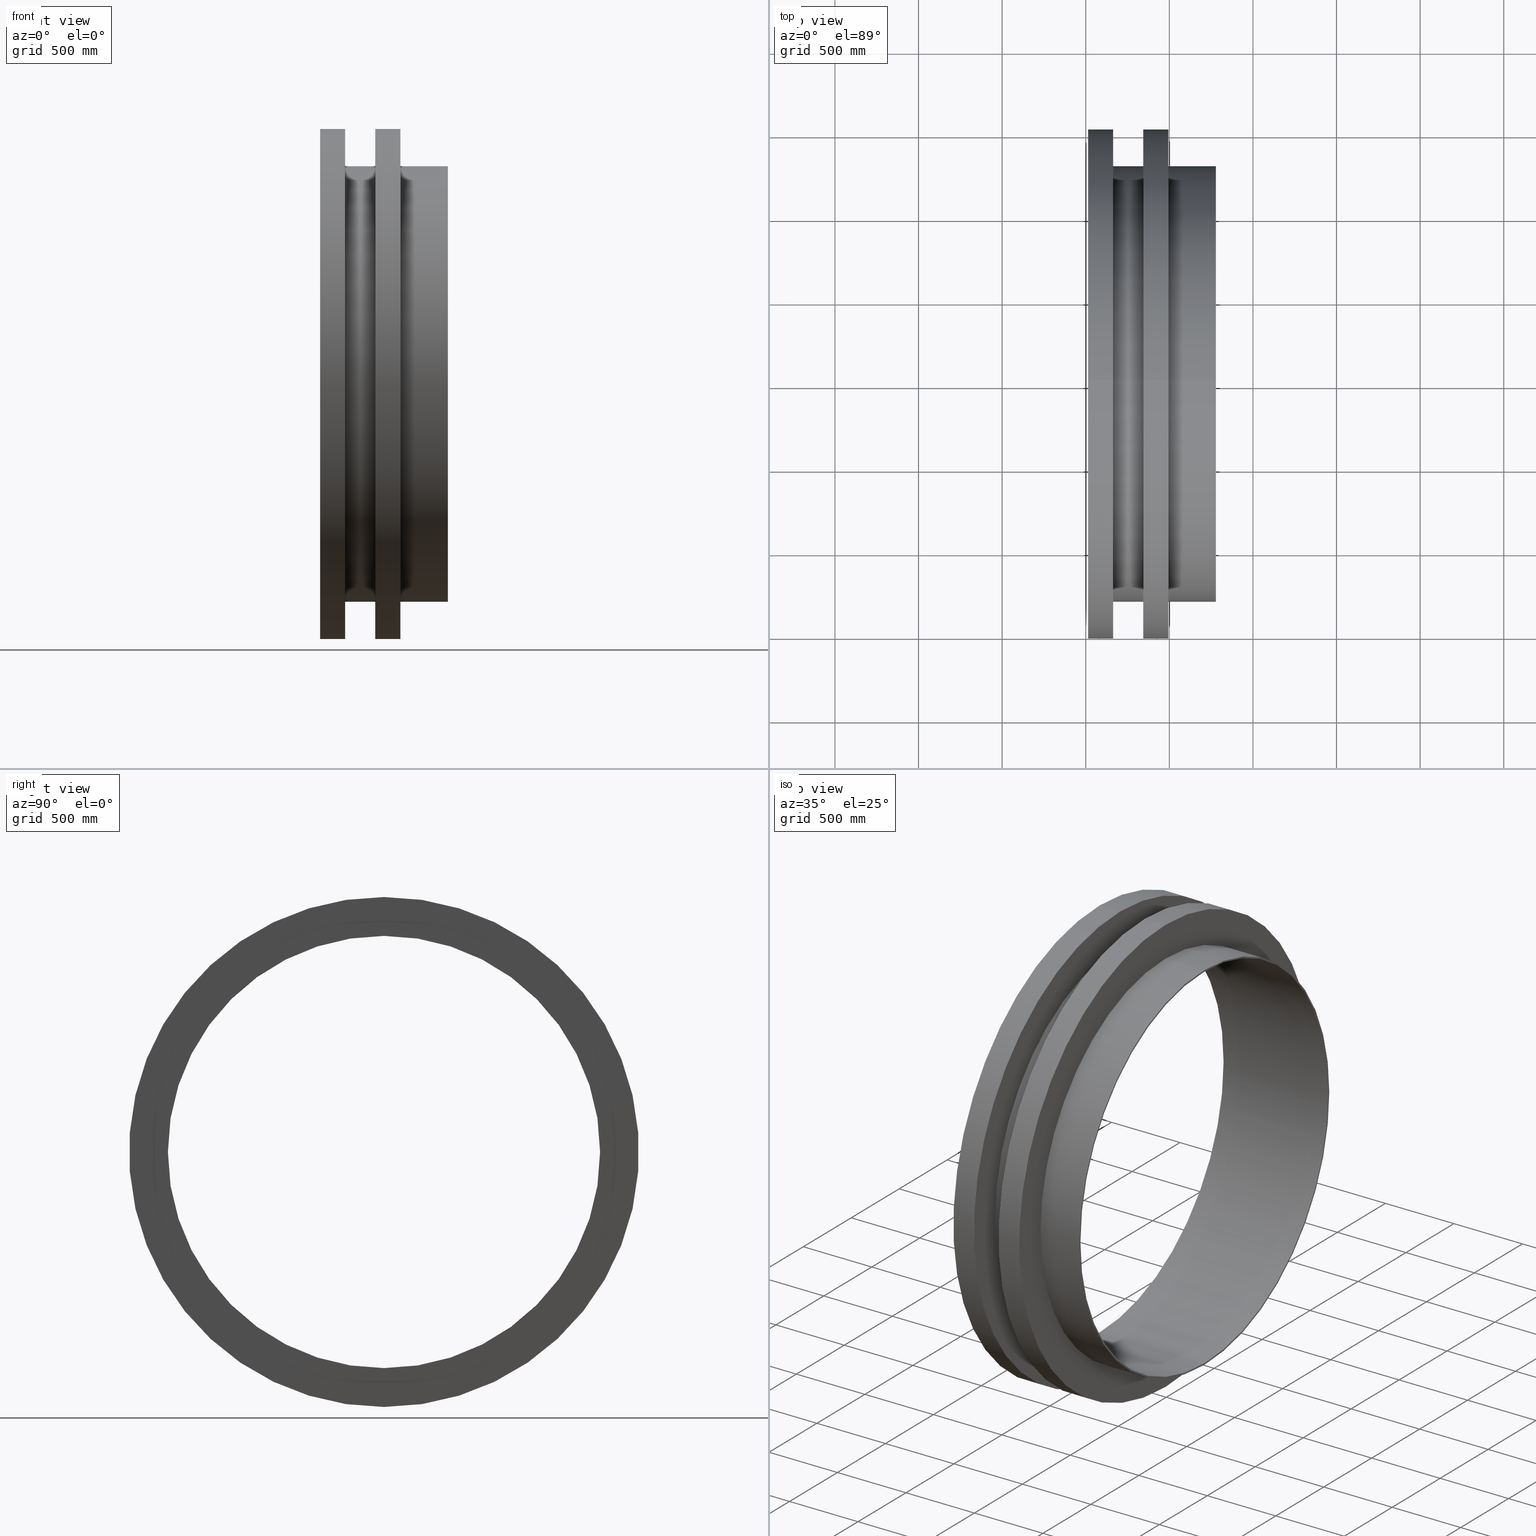
[diagram: canonical four-view strip — front | top / right | iso, engineering-drawing reading convention]
A machine part, canonical four-view strip (front | top / right | iso — engineering-drawing reading convention). The complete STEP part file that produces these views, byte-faithful:
ISO-10303-21;
HEADER;
FILE_DESCRIPTION (( 'STEP AP203' ),
    '1' );
FILE_NAME ('3974-13-42_REV_.step',
    '2026-02-11T00:55:56',
    ( '' ),
    ( '' ),
    'SwSTEP 2.0',
    'SolidWorks 2025',
    '' );
FILE_SCHEMA (( 'CONFIG_CONTROL_DESIGN' ));
ENDSEC;

DATA;
#1 = ORGANIZATION ( 'NAUO-ORG1', 'UNSPECIFIED', 'UNSPECIFIED' ) ;
#2 = EDGE_CURVE ( 'NONE', #335, #303, #547, .T. ) ;
#3 = DATE_TIME_ROLE ( 'creation_date' ) ;
#4 = DIRECTION ( 'NONE',  ( 1.000000000000000000, 2.366582715663035416E-30, 0.000000000000000000 ) ) ;
#5 = AXIS2_PLACEMENT_3D ( 'NONE', #648, #521, #463 ) ;
#6 = DIRECTION ( 'NONE',  ( 0.000000000000000000, 0.000000000000000000, -1.000000000000000000 ) ) ;
#7 = EDGE_CURVE ( 'NONE', #45, #505, #416, .T. ) ;
#8 = EDGE_LOOP ( 'NONE', ( #618, #322, #444, #651 ) ) ;
#9 = APPROVAL_DATE_TIME ( #477, #261 ) ;
#10 = DIRECTION ( 'NONE',  ( 1.000000000000000000, 0.000000000000000000, 0.000000000000000000 ) ) ;
#11 = ORIENTED_EDGE ( 'NONE', *, *, #674, .F. ) ;
#12 = EDGE_CURVE ( 'NONE', #494, #549, #637, .T. ) ;
#13 = CIRCLE ( 'NONE', #572, 1525.000000000000000 ) ;
#14 = PERSON_AND_ORGANIZATION_ROLE ( 'design_owner' ) ;
#15 = AXIS2_PLACEMENT_3D ( 'NONE', #205, #574, #259 ) ;
#16 = LOCAL_TIME ( 11, 55, 56.00000000000000000, #170 ) ;
#17 = LINE ( 'NONE', #548, #266 ) ;
#18 = EDGE_LOOP ( 'NONE', ( #427, #476 ) ) ;
#19 = PRODUCT_DEFINITION ( 'UNKNOWN', '', #605, #395 ) ;
#20 = CARTESIAN_POINT ( 'NONE',  ( -1060.000000000000000, 114.4108509701294309, -1596.231616082000301 ) ) ;
#21 = ORIENTED_EDGE ( 'NONE', *, *, #550, .T. ) ;
#22 = APPROVAL_DATE_TIME ( #551, #312 ) ;
#23 = DIRECTION ( 'NONE',  ( 0.000000000000000000, 0.000000000000000000, -1.000000000000000000 ) ) ;
#24 = ORIENTED_EDGE ( 'NONE', *, *, #299, .F. ) ;
#25 = COORDINATED_UNIVERSAL_TIME_OFFSET ( 10, 0, .AHEAD. ) ;
#26 = ADVANCED_FACE ( 'NONE', ( #695 ), #198, .T. ) ;
#27 = CARTESIAN_POINT ( 'NONE',  ( -625.3061357870070651, 114.4108509701294594, -71.23161608200013006 ) ) ;
#28 = CC_DESIGN_APPROVAL ( #312, ( #19 ) ) ;
#29 = EDGE_LOOP ( 'NONE', ( #571, #686 ) ) ;
#30 = PERSON_AND_ORGANIZATION ( #565, #383 ) ;
#31 = CYLINDRICAL_SURFACE ( 'NONE', #122, 1525.000000000000000 ) ;
#32 = ORIENTED_EDGE ( 'NONE', *, *, #201, .T. ) ;
#33 = MANIFOLD_SOLID_BREP ( 'CirPattern1', #692 ) ;
#34 = CALENDAR_DATE ( 2026, 11, 2 ) ;
#35 = DIRECTION ( 'NONE',  ( 0.000000000000000000, 0.000000000000000000, -1.000000000000000000 ) ) ;
#36 = ORIENTED_EDGE ( 'NONE', *, *, #361, .F. ) ;
#37 = APPROVAL_DATE_TIME ( #681, #583 ) ;
#38 = CARTESIAN_POINT ( 'NONE',  ( -1350.000000000000909, 114.4108509701294594, -71.23161608200079797 ) ) ;
#39 = AXIS2_PLACEMENT_3D ( 'NONE', #391, #617, #193 ) ;
#40 = ORIENTED_EDGE ( 'NONE', *, *, #12, .F. ) ;
#41 = CC_DESIGN_APPROVAL ( #285, ( #644 ) ) ;
#42 = CC_DESIGN_PERSON_AND_ORGANIZATION_ASSIGNMENT ( #291, #665, ( #644 ) ) ;
#43 = DIRECTION ( 'NONE',  ( 0.000000000000000000, 0.000000000000000000, -1.000000000000000000 ) ) ;
#44 = AXIS2_PLACEMENT_3D ( 'NONE', #265, #4, #527 ) ;
#45 = VERTEX_POINT ( 'NONE', #258 ) ;
#46 = FACE_OUTER_BOUND ( 'NONE', #497, .T. ) ;
#47 = FACE_BOUND ( 'NONE', #224, .T. ) ;
#48 = CARTESIAN_POINT ( 'NONE',  ( -1389.999999999999773, 114.4108509701295873, 1221.268383917999699 ) ) ;
#49 = EDGE_CURVE ( 'NONE', #489, #332, #250, .T. ) ;
#50 = PLANE ( 'NONE',  #501 ) ;
#51 = CIRCLE ( 'NONE', #352, 1292.500000000000000 ) ;
#52 = LOCAL_TIME ( 11, 55, 56.00000000000000000, #546 ) ;
#53 = CARTESIAN_POINT ( 'NONE',  ( -1239.999999999999773, 114.4108509701294309, -71.23161608200025796 ) ) ;
#54 = CLOSED_SHELL ( 'NONE', ( #317, #105, #407, #153, #96, #599 ) ) ;
#55 = DIRECTION ( 'NONE',  ( 1.000000000000000000, 0.000000000000000000, 0.000000000000000000 ) ) ;
#56 = FACE_BOUND ( 'NONE', #556, .T. ) ;
#57 = AXIS2_PLACEMENT_3D ( 'NONE', #400, #343, #561 ) ;
#58 = APPROVAL_STATUS ( 'not_yet_approved' ) ;
#59 = DIRECTION ( 'NONE',  ( 0.000000000000000000, 0.000000000000000000, -1.000000000000000000 ) ) ;
#60 = PERSON_AND_ORGANIZATION ( #565, #383 ) ;
#61 = CARTESIAN_POINT ( 'NONE',  ( -625.3061357870070651, 114.4108509701294594, -1363.731616082000073 ) ) ;
#62 = EDGE_LOOP ( 'NONE', ( #293, #660, #502, #613 ) ) ;
#63 = PERSON_AND_ORGANIZATION ( #565, #383 ) ;
#64 = CARTESIAN_POINT ( 'NONE',  ( -1350.000000000000909, 114.4108509701294594, -1363.731616082000755 ) ) ;
#65 = ADVANCED_FACE ( 'NONE', ( #310 ), #95, .F. ) ;
#66 = ORIENTED_EDGE ( 'NONE', *, *, #12, .T. ) ;
#67 = CC_DESIGN_DATE_AND_TIME_ASSIGNMENT ( #387, #237, ( #19 ) ) ;
#68 = AXIS2_PLACEMENT_3D ( 'NONE', #488, #214, #650 ) ;
#69 = CYLINDRICAL_SURFACE ( 'NONE', #667, 1302.500000000000000 ) ;
#70 = ORIENTED_EDGE ( 'NONE', *, *, #49, .T. ) ;
#71 = DIRECTION ( 'NONE',  ( 0.000000000000000000, 0.000000000000000000, -1.000000000000000000 ) ) ;
#72 = EDGE_LOOP ( 'NONE', ( #392, #80, #339, #593 ) ) ;
#73 = EDGE_CURVE ( 'NONE', #398, #121, #408, .T. ) ;
#74 = COORDINATED_UNIVERSAL_TIME_OFFSET ( 10, 0, .AHEAD. ) ;
#75 = DIRECTION ( 'NONE',  ( 0.000000000000000000, 0.000000000000000000, -1.000000000000000000 ) ) ;
#76 = EDGE_LOOP ( 'NONE', ( #631, #142, #21, #232 ) ) ;
#77 = PERSON_AND_ORGANIZATION_ROLE ( 'creator' ) ;
#78 = CARTESIAN_POINT ( 'NONE',  ( -1060.000000000000000, 114.4108509701294309, -71.23161608200025796 ) ) ;
#79 = AXIS2_PLACEMENT_3D ( 'NONE', #218, #438, #592 ) ;
#80 = ORIENTED_EDGE ( 'NONE', *, *, #73, .F. ) ;
#81 = CONTEXT_DEPENDENT_SHAPE_REPRESENTATION ( #157, #658 ) ;
#82 = CIRCLE ( 'NONE', #464, 1525.000000000000000 ) ;
#83 = FACE_OUTER_BOUND ( 'NONE', #350, .T. ) ;
#84 = ADVANCED_FACE ( 'NONE', ( #515, #47 ), #696, .T. ) ;
#85 = VERTEX_POINT ( 'NONE', #159 ) ;
#86 = COORDINATED_UNIVERSAL_TIME_OFFSET ( 10, 0, .AHEAD. ) ;
#87 = DIRECTION ( 'NONE',  ( 1.000000000000000000, 2.366582715663035416E-30, 0.000000000000000000 ) ) ;
#88 = ORIENTED_EDGE ( 'NONE', *, *, #386, .T. ) ;
#89 = CC_DESIGN_DATE_AND_TIME_ASSIGNMENT ( #336, #492, ( #689 ) ) ;
#90 = FACE_OUTER_BOUND ( 'NONE', #435, .T. ) ;
#91 = CIRCLE ( 'NONE', #188, 1525.000000000000000 ) ;
#92 = ORIENTED_EDGE ( 'NONE', *, *, #560, .T. ) ;
#93 = PRODUCT_DEFINITION_FORMATION_WITH_SPECIFIED_SOURCE ( 'ANY', '', #277, .NOT_KNOWN. ) ;
#94 = DIRECTION ( 'NONE',  ( 1.000000000000000000, 0.000000000000000000, 0.000000000000000000 ) ) ;
#95 = CYLINDRICAL_SURFACE ( 'NONE', #44, 1292.500000000000000 ) ;
#96 = ADVANCED_FACE ( 'NONE', ( #410, #466 ), #104, .T. ) ;
#97 = DIRECTION ( 'NONE',  ( 0.000000000000000000, 0.000000000000000000, -1.000000000000000000 ) ) ;
#98 = LINE ( 'NONE', #162, #212 ) ;
#99 = DIRECTION ( 'NONE',  ( 1.000000000000000000, 2.366582715663035416E-30, 7.000892187593784421E-61 ) ) ;
#100 = AXIS2_PLACEMENT_3D ( 'NONE', #27, #334, #43 ) ;
#101 = APPROVAL_PERSON_ORGANIZATION ( #227, #179, #602 ) ;
#102 = LOCAL_TIME ( 11, 55, 56.00000000000000000, #210 ) ;
#103 =( LENGTH_UNIT ( ) NAMED_UNIT ( * ) SI_UNIT ( .MILLI., .METRE. ) );
#104 = PLANE ( 'NONE',  #563 ) ;
#105 = ADVANCED_FACE ( 'NONE', ( #578 ), #459, .T. ) ;
#106 = DIRECTION ( 'NONE',  ( 0.000000000000000000, 0.000000000000000000, -1.000000000000000000 ) ) ;
#107 = DIRECTION ( 'NONE',  ( 0.000000000000000000, 0.000000000000000000, -1.000000000000000000 ) ) ;
#108 = EDGE_CURVE ( 'NONE', #398, #147, #98, .T. ) ;
#109 = PERSON_AND_ORGANIZATION_ROLE ( 'creator' ) ;
#110 = LINE ( 'NONE', #171, #604 ) ;
#111 = AXIS2_PLACEMENT_3D ( 'NONE', #118, #10, #59 ) ;
#112 = AXIS2_PLACEMENT_3D ( 'NONE', #630, #353, #254 ) ;
#113 = COORDINATED_UNIVERSAL_TIME_OFFSET ( 10, 0, .AHEAD. ) ;
#114 = CARTESIAN_POINT ( 'NONE',  ( -1060.000000000000000, 114.4108509701294309, -71.23161608200025796 ) ) ;
#115 = ORIENTED_EDGE ( 'NONE', *, *, #560, .F. ) ;
#116 = ADVANCED_FACE ( 'NONE', ( #585, #306 ), #50, .T. ) ;
#117 = MECHANICAL_CONTEXT ( 'NONE', #629, 'mechanical' ) ;
#118 = CARTESIAN_POINT ( 'NONE',  ( -1389.999999999999773, 114.4108509701294309, -71.23161608200025796 ) ) ;
#119 = EDGE_LOOP ( 'NONE', ( #249, #196 ) ) ;
#120 = DIRECTION ( 'NONE',  ( 1.000000000000000000, 0.000000000000000000, 0.000000000000000000 ) ) ;
#121 = VERTEX_POINT ( 'NONE', #412 ) ;
#122 = AXIS2_PLACEMENT_3D ( 'NONE', #612, #129, #247 ) ;
#123 = PERSON_AND_ORGANIZATION ( #565, #383 ) ;
#124 = AXIS2_PLACEMENT_3D ( 'NONE', #649, #418, #487 ) ;
#125 = LINE ( 'NONE', #20, #257 ) ;
#126 = ORIENTED_EDGE ( 'NONE', *, *, #437, .T. ) ;
#127 = AXIS2_PLACEMENT_3D ( 'NONE', #636, #473, #211 ) ;
#128 = PERSON_AND_ORGANIZATION_ROLE ( 'creator' ) ;
#129 = DIRECTION ( 'NONE',  ( 1.000000000000000000, 0.000000000000000000, 0.000000000000000000 ) ) ;
#130 = VERTEX_POINT ( 'NONE', #691 ) ;
#131 = PERSON_AND_ORGANIZATION ( #565, #383 ) ;
#132 = CARTESIAN_POINT ( 'NONE',  ( -1389.999999999999773, 114.4108509701294309, -1596.231616082000301 ) ) ;
#133 = VERTEX_POINT ( 'NONE', #200 ) ;
#134 = APPROVAL_ROLE ( '' ) ;
#135 = ADVANCED_FACE ( 'NONE', ( #639 ), #151, .T. ) ;
#136 = CARTESIAN_POINT ( 'NONE',  ( -1239.999999999999773, 114.4108509701294309, -71.23161608200025796 ) ) ;
#137 = AXIS2_PLACEMENT_3D ( 'NONE', #262, #199, #106 ) ;
#138 = CARTESIAN_POINT ( 'NONE',  ( -1060.000000000000000, 114.4108509701296157, 1453.768383917999472 ) ) ;
#139 = ORIENTED_EDGE ( 'NONE', *, *, #682, .T. ) ;
#140 = PLANE ( 'NONE',  #57 ) ;
#141 = EDGE_CURVE ( 'NONE', #332, #489, #82, .T. ) ;
#142 = ORIENTED_EDGE ( 'NONE', *, *, #7, .T. ) ;
#143 = CALENDAR_DATE ( 2026, 11, 2 ) ;
#144 = DIRECTION ( 'NONE',  ( 1.000000000000000000, 0.000000000000000000, 0.000000000000000000 ) ) ;
#145 = VERTEX_POINT ( 'NONE', #646 ) ;
#146 = AXIS2_PLACEMENT_3D ( 'NONE', #596, #278, #434 ) ;
#147 = VERTEX_POINT ( 'NONE', #366 ) ;
#148 = CC_DESIGN_APPROVAL ( #534, ( #93 ) ) ;
#149 = CARTESIAN_POINT ( 'NONE',  ( -1389.999999999999773, 114.4108509701294309, -71.23161608200025796 ) ) ;
#150 = CARTESIAN_POINT ( 'NONE',  ( -1060.000000000000000, 114.4108509701294309, -71.23161608200025796 ) ) ;
#151 = CYLINDRICAL_SURFACE ( 'NONE', #594, 1525.000000000000000 ) ;
#152 = ADVANCED_BREP_SHAPE_REPRESENTATION ( '', ( #33, #271, #498, #112 ), #558 ) ;
#153 = ADVANCED_FACE ( 'NONE', ( #56, #422 ), #376, .F. ) ;
#154 = DIRECTION ( 'NONE',  ( 1.000000000000000000, 0.000000000000000000, 0.000000000000000000 ) ) ;
#155 = CARTESIAN_POINT ( 'NONE',  ( -1060.000000000000000, 114.4108509701294309, -71.23161608200025796 ) ) ;
#156 = AXIS2_PLACEMENT_3D ( 'NONE', #158, #203, #195 ) ;
#157 =( REPRESENTATION_RELATIONSHIP ('NONE','NONE', #591, #367 ) REPRESENTATION_RELATIONSHIP_WITH_TRANSFORMATION ( #608 )SHAPE_REPRESENTATION_RELATIONSHIP( ) );
#158 = CARTESIAN_POINT ( 'NONE',  ( -1350.000000000000909, 114.4108509701294594, -71.23161608200079797 ) ) ;
#159 = CARTESIAN_POINT ( 'NONE',  ( -910.0000000000000000, 114.4108509701296157, 1453.768383917999472 ) ) ;
#160 = CC_DESIGN_DATE_AND_TIME_ASSIGNMENT ( #348, #436, ( #644 ) ) ;
#161 = CALENDAR_DATE ( 2026, 11, 2 ) ;
#162 = CARTESIAN_POINT ( 'NONE',  ( -1060.000000000000000, 114.4108509701294309, -1363.731616082000301 ) ) ;
#163 = CYLINDRICAL_SURFACE ( 'NONE', #426, 1292.500000000000000 ) ;
#164 = EDGE_LOOP ( 'NONE', ( #446, #385, #66, #347 ) ) ;
#165 = CIRCLE ( 'NONE', #156, 1302.500000000000000 ) ;
#166 = APPROVAL_STATUS ( 'not_yet_approved' ) ;
#167 = DIRECTION ( 'NONE',  ( 1.000000000000000000, 0.000000000000000000, 0.000000000000000000 ) ) ;
#168 = VERTEX_POINT ( 'NONE', #475 ) ;
#169 = AXIS2_PLACEMENT_3D ( 'NONE', #260, #468, #316 ) ;
#170 = COORDINATED_UNIVERSAL_TIME_OFFSET ( 10, 0, .AHEAD. ) ;
#171 = CARTESIAN_POINT ( 'NONE',  ( -1350.000000000000909, 114.4108509701294594, -1373.731616082000755 ) ) ;
#172 = EDGE_LOOP ( 'NONE', ( #284, #139, #194, #553 ) ) ;
#173 = APPROVAL_STATUS ( 'not_yet_approved' ) ;
#174 = CARTESIAN_POINT ( 'NONE',  ( -625.3061357870070651, 114.4108509701296157, 1221.268383917999927 ) ) ;
#175 = ORIENTED_EDGE ( 'NONE', *, *, #337, .F. ) ;
#176 = CIRCLE ( 'NONE', #146, 1292.500000000000000 ) ;
#177 = LINE ( 'NONE', #294, #509 ) ;
#178 = ORIENTED_EDGE ( 'NONE', *, *, #240, .T. ) ;
#179 = APPROVAL ( #166, 'UNSPECIFIED' ) ;
#180 = PERSON_AND_ORGANIZATION_ROLE ( 'design_supplier' ) ;
#181 = CARTESIAN_POINT ( 'NONE',  ( -1060.000000000000000, 114.4108509701294309, -1596.231616082000301 ) ) ;
#182 = VERTEX_POINT ( 'NONE', #483 ) ;
#183 = CALENDAR_DATE ( 2026, 11, 2 ) ;
#184 = DIRECTION ( 'NONE',  ( 1.000000000000000000, 0.000000000000000000, 0.000000000000000000 ) ) ;
#185 = VERTEX_POINT ( 'NONE', #603 ) ;
#186 = EDGE_CURVE ( 'NONE', #539, #456, #125, .T. ) ;
#187 = CC_DESIGN_PERSON_AND_ORGANIZATION_ASSIGNMENT ( #566, #128, ( #19 ) ) ;
#188 = AXIS2_PLACEMENT_3D ( 'NONE', #114, #167, #23 ) ;
#189 = DIRECTION ( 'NONE',  ( 0.000000000000000000, 0.000000000000000000, -1.000000000000000000 ) ) ;
#190 = CC_DESIGN_SECURITY_CLASSIFICATION ( #530, ( #93 ) ) ;
#191 = ORIENTED_EDGE ( 'NONE', *, *, #640, .F. ) ;
#192 = CALENDAR_DATE ( 2026, 11, 2 ) ;
#193 = DIRECTION ( 'NONE',  ( 0.000000000000000000, 0.000000000000000000, -1.000000000000000000 ) ) ;
#194 = ORIENTED_EDGE ( 'NONE', *, *, #532, .F. ) ;
#195 = DIRECTION ( 'NONE',  ( 0.000000000000000000, 0.000000000000000000, -1.000000000000000000 ) ) ;
#196 = ORIENTED_EDGE ( 'NONE', *, *, #269, .F. ) ;
#197 = AXIS2_PLACEMENT_3D ( 'NONE', #685, #413, #97 ) ;
#198 = CYLINDRICAL_SURFACE ( 'NONE', #169, 1525.000000000000000 ) ;
#199 = DIRECTION ( 'NONE',  ( 1.000000000000000000, 0.000000000000000000, 0.000000000000000000 ) ) ;
#200 = CARTESIAN_POINT ( 'NONE',  ( -1350.000000000000909, 114.4108509701296157, 1221.268383917999245 ) ) ;
#201 = EDGE_CURVE ( 'NONE', #332, #145, #327, .T. ) ;
#202 = APPLICATION_CONTEXT ( 'configuration controlled 3d designs of mechanical parts and assemblies' ) ;
#203 = DIRECTION ( 'NONE',  ( 1.000000000000000000, 2.366582715663035416E-30, 0.000000000000000000 ) ) ;
#204 = DIRECTION ( 'NONE',  ( 1.000000000000000000, 0.000000000000000000, 0.000000000000000000 ) ) ;
#205 = CARTESIAN_POINT ( 'NONE',  ( -1350.000000000000909, 114.4108509701294594, -71.23161608200079797 ) ) ;
#206 = CC_DESIGN_PERSON_AND_ORGANIZATION_ASSIGNMENT ( #131, #180, ( #605 ) ) ;
#207 = DIRECTION ( 'NONE',  ( 0.000000000000000000, 0.000000000000000000, -1.000000000000000000 ) ) ;
#208 = VECTOR ( 'NONE', #538, 1000.000000000000000 ) ;
#209 = CC_DESIGN_APPROVAL ( #179, ( #632 ) ) ;
#210 = COORDINATED_UNIVERSAL_TIME_OFFSET ( 10, 0, .AHEAD. ) ;
#211 = DIRECTION ( 'NONE',  ( 0.000000000000000000, 0.000000000000000000, -1.000000000000000000 ) ) ;
#212 = VECTOR ( 'NONE', #364, 1000.000000000000000 ) ;
#213 = PERSON_AND_ORGANIZATION_ROLE ( 'creator' ) ;
#214 = DIRECTION ( 'NONE',  ( 1.000000000000000000, 0.000000000000000000, 0.000000000000000000 ) ) ;
#215 = EDGE_CURVE ( 'NONE', #244, #185, #110, .T. ) ;
#216 = CC_DESIGN_DATE_AND_TIME_ASSIGNMENT ( #540, #3, ( #632 ) ) ;
#217 = APPROVAL_ROLE ( '' ) ;
#218 = CARTESIAN_POINT ( 'NONE',  ( -1239.999999999999773, 114.4108509701294309, -71.23161608200025796 ) ) ;
#219 = EDGE_LOOP ( 'NONE', ( #655, #289, #354, #175 ) ) ;
#220 = AXIS2_PLACEMENT_3D ( 'NONE', #397, #184, #507 ) ;
#221 = AXIS2_PLACEMENT_3D ( 'NONE', #307, #519, #154 ) ;
#222 = APPLICATION_PROTOCOL_DEFINITION ( 'international standard', 'config_control_design', 1994, #202 ) ;
#223 = FACE_OUTER_BOUND ( 'NONE', #164, .T. ) ;
#224 = EDGE_LOOP ( 'NONE', ( #178, #664 ) ) ;
#225 = CLOSED_SHELL ( 'NONE', ( #506, #135, #26, #545, #116, #491 ) ) ;
#226 = EDGE_CURVE ( 'NONE', #168, #303, #369, .T. ) ;
#227 = PERSON_AND_ORGANIZATION ( #565, #383 ) ;
#228 = CARTESIAN_POINT ( 'NONE',  ( -1350.000000000000909, 114.4108509701294594, -1373.731616082000755 ) ) ;
#229 = ORIENTED_EDGE ( 'NONE', *, *, #226, .T. ) ;
#230 = PERSON_AND_ORGANIZATION ( #565, #383 ) ;
#231 = CARTESIAN_POINT ( 'NONE',  ( -1060.000000000000000, 114.4108509701294309, -1363.731616082000301 ) ) ;
#232 = ORIENTED_EDGE ( 'NONE', *, *, #215, .F. ) ;
#233 = CIRCLE ( 'NONE', #340, 1525.000000000000000 ) ;
#234 = COORDINATED_UNIVERSAL_TIME_OFFSET ( 10, 0, .AHEAD. ) ;
#235 = CARTESIAN_POINT ( 'NONE',  ( -1060.000000000000000, 114.4108509701294309, -71.23161608200025796 ) ) ;
#236 = ORIENTED_EDGE ( 'NONE', *, *, #240, .F. ) ;
#237 = DATE_TIME_ROLE ( 'creation_date' ) ;
#238 = DIRECTION ( 'NONE',  ( 1.000000000000000000, 0.000000000000000000, 0.000000000000000000 ) ) ;
#239 = VERTEX_POINT ( 'NONE', #319 ) ;
#240 = EDGE_CURVE ( 'NONE', #303, #335, #51, .T. ) ;
#241 = CC_DESIGN_PERSON_AND_ORGANIZATION_ASSIGNMENT ( #421, #590, ( #93 ) ) ;
#242 = APPROVAL_DATE_TIME ( #503, #662 ) ;
#243 = DIRECTION ( 'NONE',  ( 1.000000000000000000, 0.000000000000000000, 0.000000000000000000 ) ) ;
#244 = VERTEX_POINT ( 'NONE', #228 ) ;
#245 = PERSON_AND_ORGANIZATION_ROLE ( 'classification_officer' ) ;
#246 = CIRCLE ( 'NONE', #328, 1292.500000000000000 ) ;
#247 = DIRECTION ( 'NONE',  ( 0.000000000000000000, 0.000000000000000000, -1.000000000000000000 ) ) ;
#248 = CC_DESIGN_SECURITY_CLASSIFICATION ( #689, ( #605 ) ) ;
#249 = ORIENTED_EDGE ( 'NONE', *, *, #280, .F. ) ;
#250 = CIRCLE ( 'NONE', #647, 1525.000000000000000 ) ;
#251 = EDGE_CURVE ( 'NONE', #601, #182, #414, .T. ) ;
#252 = FACE_BOUND ( 'NONE', #486, .T. ) ;
#253 = EDGE_LOOP ( 'NONE', ( #11, #610 ) ) ;
#254 = DIRECTION ( 'NONE',  ( 1.000000000000000000, 0.000000000000000000, 0.000000000000000000 ) ) ;
#255 = CARTESIAN_POINT ( 'NONE',  ( -1239.999999999999773, 114.4108509701294309, -71.23161608200025796 ) ) ;
#256 =( NAMED_UNIT ( * ) PLANE_ANGLE_UNIT ( ) SI_UNIT ( $, .RADIAN. ) );
#257 = VECTOR ( 'NONE', #380, 1000.000000000000000 ) ;
#258 = CARTESIAN_POINT ( 'NONE',  ( -1350.000000000000909, 114.4108509701296157, 1231.268383917999245 ) ) ;
#259 = DIRECTION ( 'NONE',  ( 0.000000000000000000, 0.000000000000000000, -1.000000000000000000 ) ) ;
#260 = CARTESIAN_POINT ( 'NONE',  ( -1060.000000000000000, 114.4108509701294309, -71.23161608200025796 ) ) ;
#261 = APPROVAL ( #58, 'UNSPECIFIED' ) ;
#262 = CARTESIAN_POINT ( 'NONE',  ( -1389.999999999999773, 114.4108509701294309, -71.23161608200025796 ) ) ;
#263 = DIRECTION ( 'NONE',  ( 0.000000000000000000, 2.958228394578794270E-31, -1.000000000000000000 ) ) ;
#264 = DIRECTION ( 'NONE',  ( 1.000000000000000000, 2.366582715663035416E-30, 0.000000000000000000 ) ) ;
#265 = CARTESIAN_POINT ( 'NONE',  ( -1350.000000000000909, 114.4108509701294594, -71.23161608200079797 ) ) ;
#266 = VECTOR ( 'NONE', #270, 1000.000000000000000 ) ;
#267 = AXIS2_PLACEMENT_3D ( 'NONE', #635, #264, #457 ) ;
#268 = DATE_AND_TIME ( #282, #102 ) ;
#269 = EDGE_CURVE ( 'NONE', #239, #147, #176, .T. ) ;
#270 = DIRECTION ( 'NONE',  ( 1.000000000000000000, 2.366582715663035416E-30, 0.000000000000000000 ) ) ;
#271 = MANIFOLD_SOLID_BREP ( 'Boss-Extrude2', #225 ) ;
#272 = ORIENTED_EDGE ( 'NONE', *, *, #673, .T. ) ;
#273 = DATE_AND_TIME ( #161, #520 ) ;
#274 = DIRECTION ( 'NONE',  ( 0.000000000000000000, 0.000000000000000000, -1.000000000000000000 ) ) ;
#275 = ORIENTED_EDGE ( 'NONE', *, *, #656, .F. ) ;
#276 = APPROVAL_ROLE ( '' ) ;
#277 = PRODUCT ( '3974-13-42_REV_', '3974-13-42_REV_', '', ( #598 ) ) ;
#278 = DIRECTION ( 'NONE',  ( 1.000000000000000000, 0.000000000000000000, 0.000000000000000000 ) ) ;
#279 = ORIENTED_EDGE ( 'NONE', *, *, #429, .F. ) ;
#280 = EDGE_CURVE ( 'NONE', #147, #239, #372, .T. ) ;
#281 = LOCAL_TIME ( 11, 55, 56.00000000000000000, #74 ) ;
#282 = CALENDAR_DATE ( 2026, 11, 2 ) ;
#283 = CARTESIAN_POINT ( 'NONE',  ( -1350.000000000000909, 114.4108509701294594, -71.23161608200079797 ) ) ;
#284 = ORIENTED_EDGE ( 'NONE', *, *, #359, .T. ) ;
#285 = APPROVAL ( #447, 'UNKNOWN' ) ;
#286 = CALENDAR_DATE ( 2026, 11, 2 ) ;
#287 = DIRECTION ( 'NONE',  ( 1.000000000000000000, 2.366582715663035416E-30, 0.000000000000000000 ) ) ;
#288 = ORIENTED_EDGE ( 'NONE', *, *, #299, .T. ) ;
#289 = ORIENTED_EDGE ( 'NONE', *, *, #141, .T. ) ;
#290 = CIRCLE ( 'NONE', #688, 1525.000000000000000 ) ;
#291 = PERSON_AND_ORGANIZATION ( #478, #1 ) ;
#292 = CARTESIAN_POINT ( 'NONE',  ( -1389.999999999999773, 114.4108509701294309, -1596.231616082000301 ) ) ;
#293 = ORIENTED_EDGE ( 'NONE', *, *, #682, .F. ) ;
#294 = CARTESIAN_POINT ( 'NONE',  ( -1060.000000000000000, 114.4108509701295873, 1221.268383917999699 ) ) ;
#295 = ORIENTED_EDGE ( 'NONE', *, *, #522, .F. ) ;
#296 = CALENDAR_DATE ( 2026, 11, 2 ) ;
#297 = FACE_OUTER_BOUND ( 'NONE', #253, .T. ) ;
#298 = EDGE_LOOP ( 'NONE', ( #279, #454 ) ) ;
#299 = EDGE_CURVE ( 'NONE', #133, #335, #17, .T. ) ;
#300 = CIRCLE ( 'NONE', #518, 1292.500000000000000 ) ;
#301 = CYLINDRICAL_SURFACE ( 'NONE', #529, 1292.500000000000000 ) ;
#302 = LOCAL_TIME ( 11, 55, 56.00000000000000000, #341 ) ;
#303 = VERTEX_POINT ( 'NONE', #61 ) ;
#304 = DIRECTION ( 'NONE',  ( 1.000000000000000000, 0.000000000000000000, 0.000000000000000000 ) ) ;
#305 = CYLINDRICAL_SURFACE ( 'NONE', #137, 1292.500000000000000 ) ;
#306 = FACE_OUTER_BOUND ( 'NONE', #597, .T. ) ;
#307 = CARTESIAN_POINT ( 'NONE',  ( 2904.000000000000000, -114.4108509701294309, 71.23161608200025796 ) ) ;
#308 = VECTOR ( 'NONE', #666, 1000.000000000000000 ) ;
#309 = CIRCLE ( 'NONE', #79, 1525.000000000000000 ) ;
#310 = FACE_OUTER_BOUND ( 'NONE', #679, .T. ) ;
#311 = APPLICATION_CONTEXT ( 'configuration controlled 3d designs of mechanical parts and assemblies' ) ;
#312 = APPROVAL ( #670, 'UNSPECIFIED' ) ;
#313 = LOCAL_TIME ( 11, 55, 56.00000000000000000, #625 ) ;
#314 = DIRECTION ( 'NONE',  ( 0.000000000000000000, 0.000000000000000000, -1.000000000000000000 ) ) ;
#315 = LINE ( 'NONE', #48, #542 ) ;
#316 = DIRECTION ( 'NONE',  ( 0.000000000000000000, 0.000000000000000000, -1.000000000000000000 ) ) ;
#317 = ADVANCED_FACE ( 'NONE', ( #223 ), #163, .F. ) ;
#318 = PERSON_AND_ORGANIZATION ( #565, #383 ) ;
#319 = CARTESIAN_POINT ( 'NONE',  ( -910.0000000000000000, 114.4108509701295873, 1221.268383917999699 ) ) ;
#320 =( NAMED_UNIT ( * ) SI_UNIT ( $, .STERADIAN. ) SOLID_ANGLE_UNIT ( ) );
#321 = CARTESIAN_POINT ( 'NONE',  ( -1239.999999999999773, 114.4108509701294309, -71.23161608200025796 ) ) ;
#322 = ORIENTED_EDGE ( 'NONE', *, *, #607, .T. ) ;
#323 = SECURITY_CLASSIFICATION_LEVEL ( 'unclassified' ) ;
#324 = CARTESIAN_POINT ( 'NONE',  ( -1389.999999999999773, 114.4108509701296157, 1453.768383917999472 ) ) ;
#325 = EDGE_LOOP ( 'NONE', ( #512, #272 ) ) ;
#326 =( NAMED_UNIT ( * ) PLANE_ANGLE_UNIT ( ) SI_UNIT ( $, .RADIAN. ) );
#327 = LINE ( 'NONE', #324, #208 ) ;
#328 = AXIS2_PLACEMENT_3D ( 'NONE', #694, #467, #514 ) ;
#329 = CC_DESIGN_SECURITY_CLASSIFICATION ( #644, ( #697 ) ) ;
#330 = PERSON_AND_ORGANIZATION_ROLE ( 'classification_officer' ) ;
#331 = DIRECTION ( 'NONE',  ( 1.000000000000000000, 2.366582715663035416E-30, 0.000000000000000000 ) ) ;
#332 = VERTEX_POINT ( 'NONE', #371 ) ;
#333 = COORDINATED_UNIVERSAL_TIME_OFFSET ( 10, 0, .AHEAD. ) ;
#334 = DIRECTION ( 'NONE',  ( -1.000000000000000000, -2.366582715663035416E-30, -0.000000000000000000 ) ) ;
#335 = VERTEX_POINT ( 'NONE', #174 ) ;
#336 = DATE_AND_TIME ( #495, #680 ) ;
#337 = EDGE_CURVE ( 'NONE', #145, #381, #309, .T. ) ;
#338 = CARTESIAN_POINT ( 'NONE',  ( -1239.999999999999773, 114.4108509701295873, 1221.268383917999699 ) ) ;
#339 = ORIENTED_EDGE ( 'NONE', *, *, #108, .T. ) ;
#340 = AXIS2_PLACEMENT_3D ( 'NONE', #500, #671, #346 ) ;
#341 = COORDINATED_UNIVERSAL_TIME_OFFSET ( 10, 0, .AHEAD. ) ;
#342 = APPROVAL_PERSON_ORGANIZATION ( #30, #662, #569 ) ;
#343 = DIRECTION ( 'NONE',  ( 1.000000000000000000, 2.366582715663035416E-30, 7.000892187593784421E-61 ) ) ;
#344 = ORIENTED_EDGE ( 'NONE', *, *, #589, .T. ) ;
#345 = SECURITY_CLASSIFICATION_LEVEL ( 'unclassified' ) ;
#346 = DIRECTION ( 'NONE',  ( 0.000000000000000000, 0.000000000000000000, -1.000000000000000000 ) ) ;
#347 = ORIENTED_EDGE ( 'NONE', *, *, #458, .F. ) ;
#348 = DATE_AND_TIME ( #296, #510 ) ;
#349 = CARTESIAN_POINT ( 'NONE',  ( -1239.999999999999773, 114.4108509701294309, -1363.731616082000301 ) ) ;
#350 = EDGE_LOOP ( 'NONE', ( #672, #126, #508, #669 ) ) ;
#351 = CC_DESIGN_PERSON_AND_ORGANIZATION_ASSIGNMENT ( #399, #245, ( #689 ) ) ;
#352 = AXIS2_PLACEMENT_3D ( 'NONE', #600, #588, #6 ) ;
#353 = DIRECTION ( 'NONE',  ( 0.000000000000000000, 0.000000000000000000, 1.000000000000000000 ) ) ;
#354 = ORIENTED_EDGE ( 'NONE', *, *, #522, .T. ) ;
#355 = AXIS2_PLACEMENT_3D ( 'NONE', #684, #402, #628 ) ;
#356 = DESIGN_CONTEXT ( 'detailed design', #311, 'design' ) ;
#357 = DIRECTION ( 'NONE',  ( 0.000000000000000000, 0.000000000000000000, 1.000000000000000000 ) ) ;
#358 = DIRECTION ( 'NONE',  ( 1.000000000000000000, 0.000000000000000000, 0.000000000000000000 ) ) ;
#359 = EDGE_CURVE ( 'NONE', #539, #130, #91, .T. ) ;
#360 = DIRECTION ( 'NONE',  ( 1.000000000000000000, 0.000000000000000000, 0.000000000000000000 ) ) ;
#361 = EDGE_CURVE ( 'NONE', #381, #145, #13, .T. ) ;
#362 = CARTESIAN_POINT ( 'NONE',  ( -1350.000000000000909, 114.4108509701296157, 1231.268383917999245 ) ) ;
#363 = CIRCLE ( 'NONE', #557, 1525.000000000000000 ) ;
#364 = DIRECTION ( 'NONE',  ( 1.000000000000000000, 0.000000000000000000, 0.000000000000000000 ) ) ;
#365 = CARTESIAN_POINT ( 'NONE',  ( -1389.999999999999773, 114.4108509701295873, 1221.268383917999699 ) ) ;
#366 = CARTESIAN_POINT ( 'NONE',  ( -910.0000000000000000, 114.4108509701294309, -1363.731616082000301 ) ) ;
#367 = SHAPE_REPRESENTATION ( 'Pipe Past Valve', ( #112 ), #558 ) ;
#368 = UNCERTAINTY_MEASURE_WITH_UNIT (LENGTH_MEASURE( 1.000000000000000082E-05 ), #103, 'distance_accuracy_value', 'NONE');
#369 = LINE ( 'NONE', #64, #308 ) ;
#370 = PERSON_AND_ORGANIZATION ( #565, #383 ) ;
#371 = CARTESIAN_POINT ( 'NONE',  ( -1389.999999999999773, 114.4108509701296157, 1453.768383917999472 ) ) ;
#372 = CIRCLE ( 'NONE', #484, 1292.500000000000000 ) ;
#373 = DIRECTION ( 'NONE',  ( 0.000000000000000000, 0.000000000000000000, -1.000000000000000000 ) ) ;
#374 = PERSON_AND_ORGANIZATION ( #565, #383 ) ;
#375 = CC_DESIGN_PERSON_AND_ORGANIZATION_ASSIGNMENT ( #318, #330, ( #530 ) ) ;
#376 = PLANE ( 'NONE',  #111 ) ;
#377 = EDGE_LOOP ( 'NONE', ( #70, #32, #36, #295 ) ) ;
#378 = APPROVAL_DATE_TIME ( #268, #534 ) ;
#379 = PRODUCT ( 'Pipe Past Valve', 'Pipe Past Valve', '', ( #117 ) ) ;
#380 = DIRECTION ( 'NONE',  ( 1.000000000000000000, 0.000000000000000000, 0.000000000000000000 ) ) ;
#381 = VERTEX_POINT ( 'NONE', #479 ) ;
#382 = VECTOR ( 'NONE', #496, 1000.000000000000000 ) ;
#383 = ORGANIZATION ( 'UNSPECIFIED', 'UNSPECIFIED', '' ) ;
#384 = LINE ( 'NONE', #677, #382 ) ;
#385 = ORIENTED_EDGE ( 'NONE', *, *, #656, .T. ) ;
#386 = EDGE_CURVE ( 'NONE', #182, #601, #300, .T. ) ;
#387 = DATE_AND_TIME ( #34, #634 ) ;
#388 = CYLINDRICAL_SURFACE ( 'NONE', #471, 1292.500000000000000 ) ;
#389 = ORIENTED_EDGE ( 'NONE', *, *, #614, .F. ) ;
#390 = SHAPE_DEFINITION_REPRESENTATION ( #481, #367 ) ;
#391 = CARTESIAN_POINT ( 'NONE',  ( -625.3061357870070651, 114.4108509701294594, -71.23161608200013006 ) ) ;
#392 = ORIENTED_EDGE ( 'NONE', *, *, #437, .F. ) ;
#393 = CIRCLE ( 'NONE', #267, 1302.500000000000000 ) ;
#394 = ADVANCED_FACE ( 'NONE', ( #541 ), #69, .T. ) ;
#395 = DESIGN_CONTEXT ( 'detailed design', #202, 'design' ) ;
#396 = CC_DESIGN_APPROVAL ( #583, ( #605 ) ) ;
#397 = CARTESIAN_POINT ( 'NONE',  ( -1060.000000000000000, 114.4108509701294309, -71.23161608200025796 ) ) ;
#398 = VERTEX_POINT ( 'NONE', #231 ) ;
#399 = PERSON_AND_ORGANIZATION ( #565, #383 ) ;
#400 = CARTESIAN_POINT ( 'NONE',  ( -1350.000000000000909, 114.4108509701294594, -71.23161608200079797 ) ) ;
#401 = CC_DESIGN_PERSON_AND_ORGANIZATION_ASSIGNMENT ( #652, #482, ( #277 ) ) ;
#402 = DIRECTION ( 'NONE',  ( -1.000000000000000000, -2.366582715663035416E-30, -0.000000000000000000 ) ) ;
#403 = ORIENTED_EDGE ( 'NONE', *, *, #614, .T. ) ;
#404 = CIRCLE ( 'NONE', #450, 1292.500000000000000 ) ;
#405 = SHAPE_REPRESENTATION_RELATIONSHIP ( 'NONE' , 'NONE' ,  #367, #152 ) ;
#406 = DIRECTION ( 'NONE',  ( 0.000000000000000000, 0.000000000000000000, -1.000000000000000000 ) ) ;
#407 = ADVANCED_FACE ( 'NONE', ( #511 ), #31, .T. ) ;
#408 = CIRCLE ( 'NONE', #127, 1292.500000000000000 ) ;
#409 = UNCERTAINTY_MEASURE_WITH_UNIT (LENGTH_MEASURE( 1.000000000000000082E-05 ), #584, 'distance_accuracy_value', 'NONE');
#410 = FACE_BOUND ( 'NONE', #624, .T. ) ;
#411 = CARTESIAN_POINT ( 'NONE',  ( 0.000000000000000000, 0.000000000000000000, 0.000000000000000000 ) ) ;
#412 = CARTESIAN_POINT ( 'NONE',  ( -1060.000000000000000, 114.4108509701295873, 1221.268383917999699 ) ) ;
#413 = DIRECTION ( 'NONE',  ( 1.000000000000000000, 2.366582715663035416E-30, 0.000000000000000000 ) ) ;
#414 = CIRCLE ( 'NONE', #68, 1292.500000000000000 ) ;
#415 = APPROVAL_PERSON_ORGANIZATION ( #60, #534, #217 ) ;
#416 = LINE ( 'NONE', #362, #623 ) ;
#417 = AXIS2_PLACEMENT_3D ( 'NONE', #53, #579, #107 ) ;
#418 = DIRECTION ( 'NONE',  ( 0.000000000000000000, 0.000000000000000000, 1.000000000000000000 ) ) ;
#419 = DIRECTION ( 'NONE',  ( 0.000000000000000000, 0.000000000000000000, -1.000000000000000000 ) ) ;
#420 = PRODUCT_RELATED_PRODUCT_CATEGORY ( 'detail', '', ( #277 ) ) ;
#421 = PERSON_AND_ORGANIZATION ( #565, #383 ) ;
#422 = FACE_OUTER_BOUND ( 'NONE', #18, .T. ) ;
#423 = ORIENTED_EDGE ( 'NONE', *, *, #627, .T. ) ;
#424 = SHAPE_DEFINITION_REPRESENTATION ( #490, #591 ) ;
#425 = CARTESIAN_POINT ( 'NONE',  ( -1389.999999999999773, 114.4108509701294309, -71.23161608200025796 ) ) ;
#426 = AXIS2_PLACEMENT_3D ( 'NONE', #659, #120, #71 ) ;
#427 = ORIENTED_EDGE ( 'NONE', *, *, #49, .F. ) ;
#428 = APPROVAL_PERSON_ORGANIZATION ( #374, #261, #276 ) ;
#429 = EDGE_CURVE ( 'NONE', #185, #505, #461, .T. ) ;
#430 = ADVANCED_FACE ( 'NONE', ( #252, #297 ), #140, .F. ) ;
#431 = PERSON_AND_ORGANIZATION ( #565, #383 ) ;
#432 = DIRECTION ( 'NONE',  ( 1.000000000000000000, 0.000000000000000000, 0.000000000000000000 ) ) ;
#433 = COORDINATED_UNIVERSAL_TIME_OFFSET ( 10, 0, .AHEAD. ) ;
#434 = DIRECTION ( 'NONE',  ( 0.000000000000000000, 0.000000000000000000, -1.000000000000000000 ) ) ;
#435 = EDGE_LOOP ( 'NONE', ( #275, #606, #564, #92 ) ) ;
#436 = DATE_TIME_ROLE ( 'classification_date' ) ;
#437 = EDGE_CURVE ( 'NONE', #121, #239, #177, .T. ) ;
#438 = DIRECTION ( 'NONE',  ( 1.000000000000000000, 0.000000000000000000, 0.000000000000000000 ) ) ;
#439 = ORIENTED_EDGE ( 'NONE', *, *, #359, .F. ) ;
#440 = VECTOR ( 'NONE', #144, 1000.000000000000000 ) ;
#441 = AXIS2_PLACEMENT_3D ( 'NONE', #411, #357, #577 ) ;
#442 = APPROVAL_ROLE ( '' ) ;
#443 = LINE ( 'NONE', #292, #440 ) ;
#444 = ORIENTED_EDGE ( 'NONE', *, *, #215, .T. ) ;
#445 = FACE_BOUND ( 'NONE', #325, .T. ) ;
#446 = ORIENTED_EDGE ( 'NONE', *, *, #251, .F. ) ;
#447 = APPROVAL_STATUS ( 'not_yet_approved' ) ;
#448 = CARTESIAN_POINT ( 'NONE',  ( -625.3061357870070651, 114.4108509701296157, 1231.268383917999927 ) ) ;
#449 = ORIENTED_EDGE ( 'NONE', *, *, #251, .T. ) ;
#450 = AXIS2_PLACEMENT_3D ( 'NONE', #38, #87, #570 ) ;
#451 = VECTOR ( 'NONE', #523, 1000.000000000000000 ) ;
#452 = DATE_AND_TIME ( #286, #302 ) ;
#453 = PLANE ( 'NONE',  #220 ) ;
#454 = ORIENTED_EDGE ( 'NONE', *, *, #550, .F. ) ;
#455 = DIRECTION ( 'NONE',  ( 1.000000000000000000, 0.000000000000000000, 0.000000000000000000 ) ) ;
#456 = VERTEX_POINT ( 'NONE', #626 ) ;
#457 = DIRECTION ( 'NONE',  ( 0.000000000000000000, 0.000000000000000000, -1.000000000000000000 ) ) ;
#458 = EDGE_CURVE ( 'NONE', #182, #549, #384, .T. ) ;
#459 = CYLINDRICAL_SURFACE ( 'NONE', #5, 1525.000000000000000 ) ;
#460 = CC_DESIGN_PERSON_AND_ORGANIZATION_ASSIGNMENT ( #370, #213, ( #632 ) ) ;
#461 = CIRCLE ( 'NONE', #100, 1302.500000000000000 ) ;
#462 = CYLINDRICAL_SURFACE ( 'NONE', #15, 1292.500000000000000 ) ;
#463 = DIRECTION ( 'NONE',  ( 0.000000000000000000, 0.000000000000000000, -1.000000000000000000 ) ) ;
#464 = AXIS2_PLACEMENT_3D ( 'NONE', #524, #55, #207 ) ;
#465 = DIRECTION ( 'NONE',  ( 1.000000000000000000, 0.000000000000000000, 0.000000000000000000 ) ) ;
#466 = FACE_OUTER_BOUND ( 'NONE', #29, .T. ) ;
#467 = DIRECTION ( 'NONE',  ( 1.000000000000000000, 0.000000000000000000, 0.000000000000000000 ) ) ;
#468 = DIRECTION ( 'NONE',  ( 1.000000000000000000, 0.000000000000000000, 0.000000000000000000 ) ) ;
#469 = APPLICATION_PROTOCOL_DEFINITION ( 'international standard', 'config_control_design', 1994, #586 ) ;
#470 = ADVANCED_FACE ( 'NONE', ( #683 ), #552, .T. ) ;
#471 = AXIS2_PLACEMENT_3D ( 'NONE', #78, #238, #189 ) ;
#472 = APPROVAL_PERSON_ORGANIZATION ( #291, #285, #554 ) ;
#473 = DIRECTION ( 'NONE',  ( 1.000000000000000000, 0.000000000000000000, 0.000000000000000000 ) ) ;
#474 = DATE_TIME_ROLE ( 'classification_date' ) ;
#475 = CARTESIAN_POINT ( 'NONE',  ( -1350.000000000000909, 114.4108509701294594, -1363.731616082000755 ) ) ;
#476 = ORIENTED_EDGE ( 'NONE', *, *, #141, .F. ) ;
#477 = DATE_AND_TIME ( #533, #485 ) ;
#478 = PERSON ( 'NAUO-PER1', 'UNSPECIFIED', 'UNSPECIFIED', ('UNSPECIFIED'), ('UNSPECIFIED'), ('UNSPECIFIED') ) ;
#479 = CARTESIAN_POINT ( 'NONE',  ( -1239.999999999999773, 114.4108509701294309, -1596.231616082000301 ) ) ;
#480 = ORIENTED_EDGE ( 'NONE', *, *, #226, .F. ) ;
#481 = PRODUCT_DEFINITION_SHAPE ( 'NONE', 'NONE',  #19 ) ;
#482 = PERSON_AND_ORGANIZATION_ROLE ( 'design_owner' ) ;
#483 = CARTESIAN_POINT ( 'NONE',  ( -1389.999999999999773, 114.4108509701294309, -1363.731616082000301 ) ) ;
#484 = AXIS2_PLACEMENT_3D ( 'NONE', #663, #432, #531 ) ;
#485 = LOCAL_TIME ( 11, 55, 56.00000000000000000, #113 ) ;
#486 = EDGE_LOOP ( 'NONE', ( #403, #344 ) ) ;
#487 = DIRECTION ( 'NONE',  ( 1.000000000000000000, 0.000000000000000000, 0.000000000000000000 ) ) ;
#488 = CARTESIAN_POINT ( 'NONE',  ( -1389.999999999999773, 114.4108509701294309, -71.23161608200025796 ) ) ;
#489 = VERTEX_POINT ( 'NONE', #132 ) ;
#490 = PRODUCT_DEFINITION_SHAPE ( 'NONE', 'NONE',  #632 ) ;
#491 = ADVANCED_FACE ( 'NONE', ( #609 ), #301, .F. ) ;
#492 = DATE_TIME_ROLE ( 'classification_date' ) ;
#493 = DIRECTION ( 'NONE',  ( 0.000000000000000000, 0.000000000000000000, -1.000000000000000000 ) ) ;
#494 = VERTEX_POINT ( 'NONE', #338 ) ;
#495 = CALENDAR_DATE ( 2026, 11, 2 ) ;
#496 = DIRECTION ( 'NONE',  ( 1.000000000000000000, 0.000000000000000000, 0.000000000000000000 ) ) ;
#497 = EDGE_LOOP ( 'NONE', ( #544, #288, #236, #480 ) ) ;
#498 = MANIFOLD_SOLID_BREP ( 'LPattern1', #54 ) ;
#499 = APPROVAL_STATUS ( 'not_yet_approved' ) ;
#500 = CARTESIAN_POINT ( 'NONE',  ( -910.0000000000000000, 114.4108509701294309, -71.23161608200025796 ) ) ;
#501 = AXIS2_PLACEMENT_3D ( 'NONE', #517, #204, #575 ) ;
#502 = ORIENTED_EDGE ( 'NONE', *, *, #186, .T. ) ;
#503 = DATE_AND_TIME ( #183, #281 ) ;
#504 = CARTESIAN_POINT ( 'NONE',  ( -1350.000000000000909, 114.4108509701294594, -71.23161608200079797 ) ) ;
#505 = VERTEX_POINT ( 'NONE', #448 ) ;
#506 = ADVANCED_FACE ( 'NONE', ( #83 ), #388, .F. ) ;
#507 = DIRECTION ( 'NONE',  ( 0.000000000000000000, 0.000000000000000000, -1.000000000000000000 ) ) ;
#508 = ORIENTED_EDGE ( 'NONE', *, *, #269, .T. ) ;
#509 = VECTOR ( 'NONE', #455, 1000.000000000000000 ) ;
#510 = LOCAL_TIME ( 11, 55, 56.00000000000000000, #86 ) ;
#511 = FACE_OUTER_BOUND ( 'NONE', #219, .T. ) ;
#512 = ORIENTED_EDGE ( 'NONE', *, *, #73, .T. ) ;
#513 = AXIS2_PLACEMENT_3D ( 'NONE', #582, #99, #263 ) ;
#514 = DIRECTION ( 'NONE',  ( 0.000000000000000000, 0.000000000000000000, -1.000000000000000000 ) ) ;
#515 = FACE_OUTER_BOUND ( 'NONE', #298, .T. ) ;
#516 = DIRECTION ( 'NONE',  ( 0.000000000000000000, 0.000000000000000000, -1.000000000000000000 ) ) ;
#517 = CARTESIAN_POINT ( 'NONE',  ( -910.0000000000000000, 114.4108509701294309, -71.23161608200025796 ) ) ;
#518 = AXIS2_PLACEMENT_3D ( 'NONE', #425, #654, #373 ) ;
#519 = DIRECTION ( 'NONE',  ( 0.000000000000000000, 0.000000000000000000, 1.000000000000000000 ) ) ;
#520 = LOCAL_TIME ( 11, 55, 56.00000000000000000, #433 ) ;
#521 = DIRECTION ( 'NONE',  ( 1.000000000000000000, 0.000000000000000000, 0.000000000000000000 ) ) ;
#522 = EDGE_CURVE ( 'NONE', #489, #381, #443, .T. ) ;
#523 = DIRECTION ( 'NONE',  ( 1.000000000000000000, 0.000000000000000000, 0.000000000000000000 ) ) ;
#524 = CARTESIAN_POINT ( 'NONE',  ( -1389.999999999999773, 114.4108509701294309, -71.23161608200025796 ) ) ;
#525 = PRODUCT_RELATED_PRODUCT_CATEGORY ( 'detail', '', ( #379 ) ) ;
#526 =( NAMED_UNIT ( * ) SI_UNIT ( $, .STERADIAN. ) SOLID_ANGLE_UNIT ( ) );
#527 = DIRECTION ( 'NONE',  ( 0.000000000000000000, 0.000000000000000000, -1.000000000000000000 ) ) ;
#528 = DATE_AND_TIME ( #595, #52 ) ;
#529 = AXIS2_PLACEMENT_3D ( 'NONE', #235, #243, #75 ) ;
#530 = SECURITY_CLASSIFICATION ( '', '', #323 ) ;
#531 = DIRECTION ( 'NONE',  ( 0.000000000000000000, 0.000000000000000000, -1.000000000000000000 ) ) ;
#532 = EDGE_CURVE ( 'NONE', #456, #85, #233, .T. ) ;
#533 = CALENDAR_DATE ( 2026, 11, 2 ) ;
#534 = APPROVAL ( #173, 'UNSPECIFIED' ) ;
#535 = DIRECTION ( 'NONE',  ( 1.000000000000000000, 0.000000000000000000, 0.000000000000000000 ) ) ;
#536 = ORIENTED_EDGE ( 'NONE', *, *, #532, .T. ) ;
#537 = APPLICATION_PROTOCOL_DEFINITION ( 'international standard', 'config_control_design', 1994, #629 ) ;
#538 = DIRECTION ( 'NONE',  ( 1.000000000000000000, 0.000000000000000000, 0.000000000000000000 ) ) ;
#539 = VERTEX_POINT ( 'NONE', #181 ) ;
#540 = DATE_AND_TIME ( #661, #16 ) ;
#541 = FACE_OUTER_BOUND ( 'NONE', #76, .T. ) ;
#542 = VECTOR ( 'NONE', #94, 1000.000000000000000 ) ;
#543 = CC_DESIGN_APPROVAL ( #662, ( #689 ) ) ;
#544 = ORIENTED_EDGE ( 'NONE', *, *, #589, .F. ) ;
#545 = ADVANCED_FACE ( 'NONE', ( #445, #675 ), #453, .F. ) ;
#546 = COORDINATED_UNIVERSAL_TIME_OFFSET ( 10, 0, .AHEAD. ) ;
#547 = CIRCLE ( 'NONE', #355, 1292.500000000000000 ) ;
#548 = CARTESIAN_POINT ( 'NONE',  ( -1350.000000000000909, 114.4108509701296157, 1221.268383917999245 ) ) ;
#549 = VERTEX_POINT ( 'NONE', #349 ) ;
#550 = EDGE_CURVE ( 'NONE', #505, #185, #678, .T. ) ;
#551 = DATE_AND_TIME ( #192, #573 ) ;
#552 = CYLINDRICAL_SURFACE ( 'NONE', #580, 1302.500000000000000 ) ;
#553 = ORIENTED_EDGE ( 'NONE', *, *, #186, .F. ) ;
#554 = APPROVAL_ROLE ( '' ) ;
#555 = DIRECTION ( 'NONE',  ( 1.000000000000000000, 2.366582715663035416E-30, 0.000000000000000000 ) ) ;
#556 = EDGE_LOOP ( 'NONE', ( #88, #449 ) ) ;
#557 = AXIS2_PLACEMENT_3D ( 'NONE', #150, #360, #690 ) ;
#558 =( GEOMETRIC_REPRESENTATION_CONTEXT ( 3 ) GLOBAL_UNCERTAINTY_ASSIGNED_CONTEXT ( ( #409 ) ) GLOBAL_UNIT_ASSIGNED_CONTEXT ( ( #584, #256, #526 ) ) REPRESENTATION_CONTEXT ( 'NONE', 'WORKASPACE' ) );
#559 = PERSON_AND_ORGANIZATION ( #565, #383 ) ;
#560 = EDGE_CURVE ( 'NONE', #549, #494, #633, .T. ) ;
#561 = DIRECTION ( 'NONE',  ( 0.000000000000000000, 2.958228394578794270E-31, -1.000000000000000000 ) ) ;
#562 = CC_DESIGN_PERSON_AND_ORGANIZATION_ASSIGNMENT ( #63, #14, ( #379 ) ) ;
#563 = AXIS2_PLACEMENT_3D ( 'NONE', #255, #358, #419 ) ;
#564 = ORIENTED_EDGE ( 'NONE', *, *, #458, .T. ) ;
#565 = PERSON ( 'UNSPECIFIED', 'UNSPECIFIED', 'UNSPECIFIED', ('UNSPECIFIED'), ('UNSPECIFIED'), ('UNSPECIFIED') ) ;
#566 = PERSON_AND_ORGANIZATION ( #565, #383 ) ;
#567 = DIRECTION ( 'NONE',  ( 0.000000000000000000, 0.000000000000000000, -1.000000000000000000 ) ) ;
#568 = ORIENTED_EDGE ( 'NONE', *, *, #2, .F. ) ;
#569 = APPROVAL_ROLE ( '' ) ;
#570 = DIRECTION ( 'NONE',  ( 0.000000000000000000, 0.000000000000000000, -1.000000000000000000 ) ) ;
#571 = ORIENTED_EDGE ( 'NONE', *, *, #361, .T. ) ;
#572 = AXIS2_PLACEMENT_3D ( 'NONE', #321, #535, #274 ) ;
#573 = LOCAL_TIME ( 11, 55, 56.00000000000000000, #25 ) ;
#574 = DIRECTION ( 'NONE',  ( 1.000000000000000000, 2.366582715663035416E-30, 0.000000000000000000 ) ) ;
#575 = DIRECTION ( 'NONE',  ( 0.000000000000000000, 0.000000000000000000, -1.000000000000000000 ) ) ;
#576 = CC_DESIGN_PERSON_AND_ORGANIZATION_ASSIGNMENT ( #123, #109, ( #93 ) ) ;
#577 = DIRECTION ( 'NONE',  ( 1.000000000000000000, 0.000000000000000000, 0.000000000000000000 ) ) ;
#578 = FACE_OUTER_BOUND ( 'NONE', #377, .T. ) ;
#579 = DIRECTION ( 'NONE',  ( 1.000000000000000000, 0.000000000000000000, 0.000000000000000000 ) ) ;
#580 = AXIS2_PLACEMENT_3D ( 'NONE', #504, #555, #35 ) ;
#581 = APPROVAL_PERSON_ORGANIZATION ( #559, #583, #442 ) ;
#582 = CARTESIAN_POINT ( 'NONE',  ( -625.3061357870075199, -3465.000000000000455, -3836.498542736693707 ) ) ;
#583 = APPROVAL ( #499, 'UNSPECIFIED' ) ;
#584 =( LENGTH_UNIT ( ) NAMED_UNIT ( * ) SI_UNIT ( .MILLI., .METRE. ) );
#585 = FACE_BOUND ( 'NONE', #119, .T. ) ;
#586 = APPLICATION_CONTEXT ( 'configuration controlled 3d designs of mechanical parts and assemblies' ) ;
#587 = APPROVAL_DATE_TIME ( #273, #179 ) ;
#588 = DIRECTION ( 'NONE',  ( -1.000000000000000000, -2.366582715663035416E-30, -0.000000000000000000 ) ) ;
#589 = EDGE_CURVE ( 'NONE', #133, #168, #404, .T. ) ;
#590 = PERSON_AND_ORGANIZATION_ROLE ( 'design_supplier' ) ;
#591 = SHAPE_REPRESENTATION ( '3974-13-42_REV_', ( #124, #221 ), #620 ) ;
#592 = DIRECTION ( 'NONE',  ( 0.000000000000000000, 0.000000000000000000, -1.000000000000000000 ) ) ;
#593 = ORIENTED_EDGE ( 'NONE', *, *, #280, .T. ) ;
#594 = AXIS2_PLACEMENT_3D ( 'NONE', #155, #642, #314 ) ;
#595 = CALENDAR_DATE ( 2026, 11, 2 ) ;
#596 = CARTESIAN_POINT ( 'NONE',  ( -910.0000000000000000, 114.4108509701294309, -71.23161608200025796 ) ) ;
#597 = EDGE_LOOP ( 'NONE', ( #536, #423 ) ) ;
#598 = MECHANICAL_CONTEXT ( 'NONE', #586, 'mechanical' ) ;
#599 = ADVANCED_FACE ( 'NONE', ( #90 ), #305, .F. ) ;
#600 = CARTESIAN_POINT ( 'NONE',  ( -625.3061357870070651, 114.4108509701294594, -71.23161608200013006 ) ) ;
#601 = VERTEX_POINT ( 'NONE', #365 ) ;
#602 = APPROVAL_ROLE ( '' ) ;
#603 = CARTESIAN_POINT ( 'NONE',  ( -625.3061357870070651, 114.4108509701294594, -1373.731616082000073 ) ) ;
#604 = VECTOR ( 'NONE', #331, 1000.000000000000000 ) ;
#605 = PRODUCT_DEFINITION_FORMATION_WITH_SPECIFIED_SOURCE ( 'ANY', '', #379, .NOT_KNOWN. ) ;
#606 = ORIENTED_EDGE ( 'NONE', *, *, #386, .F. ) ;
#607 = EDGE_CURVE ( 'NONE', #45, #244, #165, .T. ) ;
#608 = ITEM_DEFINED_TRANSFORMATION ( 'NONE', 'NONE', #221,  #112 ) ;
#609 = FACE_OUTER_BOUND ( 'NONE', #72, .T. ) ;
#610 = ORIENTED_EDGE ( 'NONE', *, *, #607, .F. ) ;
#611 = APPROVAL_STATUS ( 'not_yet_approved' ) ;
#612 = CARTESIAN_POINT ( 'NONE',  ( -1389.999999999999773, 114.4108509701294309, -71.23161608200025796 ) ) ;
#613 = ORIENTED_EDGE ( 'NONE', *, *, #627, .F. ) ;
#614 = EDGE_CURVE ( 'NONE', #168, #133, #619, .T. ) ;
#615 = SECURITY_CLASSIFICATION_LEVEL ( 'unclassified' ) ;
#616 = ADVANCED_FACE ( 'NONE', ( #46 ), #462, .F. ) ;
#617 = DIRECTION ( 'NONE',  ( -1.000000000000000000, -2.366582715663035416E-30, -0.000000000000000000 ) ) ;
#618 = ORIENTED_EDGE ( 'NONE', *, *, #7, .F. ) ;
#619 = CIRCLE ( 'NONE', #197, 1292.500000000000000 ) ;
#620 =( GEOMETRIC_REPRESENTATION_CONTEXT ( 3 ) GLOBAL_UNCERTAINTY_ASSIGNED_CONTEXT ( ( #368 ) ) GLOBAL_UNIT_ASSIGNED_CONTEXT ( ( #103, #326, #320 ) ) REPRESENTATION_CONTEXT ( 'NONE', 'WORKASPACE' ) );
#621 = APPROVAL_DATE_TIME ( #452, #285 ) ;
#622 = DIRECTION ( 'NONE',  ( 1.000000000000000000, 0.000000000000000000, 0.000000000000000000 ) ) ;
#623 = VECTOR ( 'NONE', #687, 1000.000000000000000 ) ;
#624 = EDGE_LOOP ( 'NONE', ( #115, #40 ) ) ;
#625 = COORDINATED_UNIVERSAL_TIME_OFFSET ( 10, 0, .AHEAD. ) ;
#626 = CARTESIAN_POINT ( 'NONE',  ( -910.0000000000000000, 114.4108509701294309, -1596.231616082000301 ) ) ;
#627 = EDGE_CURVE ( 'NONE', #85, #456, #290, .T. ) ;
#628 = DIRECTION ( 'NONE',  ( 0.000000000000000000, 0.000000000000000000, -1.000000000000000000 ) ) ;
#629 = APPLICATION_CONTEXT ( 'configuration controlled 3d designs of mechanical parts and assemblies' ) ;
#630 = CARTESIAN_POINT ( 'NONE',  ( 0.000000000000000000, 0.000000000000000000, 0.000000000000000000 ) ) ;
#631 = ORIENTED_EDGE ( 'NONE', *, *, #674, .T. ) ;
#632 = PRODUCT_DEFINITION ( 'UNKNOWN', '', #93, #356 ) ;
#633 = CIRCLE ( 'NONE', #643, 1292.500000000000000 ) ;
#634 = LOCAL_TIME ( 11, 55, 56.00000000000000000, #234 ) ;
#635 = CARTESIAN_POINT ( 'NONE',  ( -1350.000000000000909, 114.4108509701294594, -71.23161608200079797 ) ) ;
#636 = CARTESIAN_POINT ( 'NONE',  ( -1060.000000000000000, 114.4108509701294309, -71.23161608200025796 ) ) ;
#637 = CIRCLE ( 'NONE', #417, 1292.500000000000000 ) ;
#638 = CARTESIAN_POINT ( 'NONE',  ( -910.0000000000000000, 114.4108509701294309, -71.23161608200025796 ) ) ;
#639 = FACE_OUTER_BOUND ( 'NONE', #172, .T. ) ;
#640 = EDGE_CURVE ( 'NONE', #130, #539, #363, .T. ) ;
#641 = CC_DESIGN_PERSON_AND_ORGANIZATION_ASSIGNMENT ( #230, #77, ( #605 ) ) ;
#642 = DIRECTION ( 'NONE',  ( 1.000000000000000000, 0.000000000000000000, 0.000000000000000000 ) ) ;
#643 = AXIS2_PLACEMENT_3D ( 'NONE', #136, #622, #567 ) ;
#644 = SECURITY_CLASSIFICATION ( '', '', #615 ) ;
#645 = LINE ( 'NONE', #138, #451 ) ;
#646 = CARTESIAN_POINT ( 'NONE',  ( -1239.999999999999773, 114.4108509701296157, 1453.768383917999472 ) ) ;
#647 = AXIS2_PLACEMENT_3D ( 'NONE', #149, #304, #406 ) ;
#648 = CARTESIAN_POINT ( 'NONE',  ( -1389.999999999999773, 114.4108509701294309, -71.23161608200025796 ) ) ;
#649 = CARTESIAN_POINT ( 'NONE',  ( 0.000000000000000000, 0.000000000000000000, 0.000000000000000000 ) ) ;
#650 = DIRECTION ( 'NONE',  ( 0.000000000000000000, 0.000000000000000000, -1.000000000000000000 ) ) ;
#651 = ORIENTED_EDGE ( 'NONE', *, *, #429, .T. ) ;
#652 = PERSON_AND_ORGANIZATION ( #565, #383 ) ;
#653 = CC_DESIGN_APPROVAL ( #261, ( #530 ) ) ;
#654 = DIRECTION ( 'NONE',  ( 1.000000000000000000, 0.000000000000000000, 0.000000000000000000 ) ) ;
#655 = ORIENTED_EDGE ( 'NONE', *, *, #201, .F. ) ;
#656 = EDGE_CURVE ( 'NONE', #601, #494, #315, .T. ) ;
#657 = APPLICATION_PROTOCOL_DEFINITION ( 'international standard', 'config_control_design', 1994, #311 ) ;
#658 = PRODUCT_DEFINITION_SHAPE ( 'NONE', 'NONE',  #697 ) ;
#659 = CARTESIAN_POINT ( 'NONE',  ( -1389.999999999999773, 114.4108509701294309, -71.23161608200025796 ) ) ;
#660 = ORIENTED_EDGE ( 'NONE', *, *, #640, .T. ) ;
#661 = CALENDAR_DATE ( 2026, 11, 2 ) ;
#662 = APPROVAL ( #611, 'UNSPECIFIED' ) ;
#663 = CARTESIAN_POINT ( 'NONE',  ( -910.0000000000000000, 114.4108509701294309, -71.23161608200025796 ) ) ;
#664 = ORIENTED_EDGE ( 'NONE', *, *, #2, .T. ) ;
#665 = PERSON_AND_ORGANIZATION_ROLE ( 'classification_officer' ) ;
#666 = DIRECTION ( 'NONE',  ( 1.000000000000000000, 2.366582715663035416E-30, 0.000000000000000000 ) ) ;
#667 = AXIS2_PLACEMENT_3D ( 'NONE', #283, #287, #493 ) ;
#668 = APPROVAL_PERSON_ORGANIZATION ( #431, #312, #134 ) ;
#669 = ORIENTED_EDGE ( 'NONE', *, *, #108, .F. ) ;
#670 = APPROVAL_STATUS ( 'not_yet_approved' ) ;
#671 = DIRECTION ( 'NONE',  ( 1.000000000000000000, 0.000000000000000000, 0.000000000000000000 ) ) ;
#672 = ORIENTED_EDGE ( 'NONE', *, *, #673, .F. ) ;
#673 = EDGE_CURVE ( 'NONE', #121, #398, #246, .T. ) ;
#674 = EDGE_CURVE ( 'NONE', #244, #45, #393, .T. ) ;
#675 = FACE_OUTER_BOUND ( 'NONE', #676, .T. ) ;
#676 = EDGE_LOOP ( 'NONE', ( #439, #191 ) ) ;
#677 = CARTESIAN_POINT ( 'NONE',  ( -1389.999999999999773, 114.4108509701294309, -1363.731616082000301 ) ) ;
#678 = CIRCLE ( 'NONE', #39, 1302.500000000000000 ) ;
#679 = EDGE_LOOP ( 'NONE', ( #24, #389, #229, #568 ) ) ;
#680 = LOCAL_TIME ( 11, 55, 56.00000000000000000, #333 ) ;
#681 = DATE_AND_TIME ( #143, #313 ) ;
#682 = EDGE_CURVE ( 'NONE', #130, #85, #645, .T. ) ;
#683 = FACE_OUTER_BOUND ( 'NONE', #8, .T. ) ;
#684 = CARTESIAN_POINT ( 'NONE',  ( -625.3061357870070651, 114.4108509701294594, -71.23161608200013006 ) ) ;
#685 = CARTESIAN_POINT ( 'NONE',  ( -1350.000000000000909, 114.4108509701294594, -71.23161608200079797 ) ) ;
#686 = ORIENTED_EDGE ( 'NONE', *, *, #337, .T. ) ;
#687 = DIRECTION ( 'NONE',  ( 1.000000000000000000, 2.366582715663035416E-30, 0.000000000000000000 ) ) ;
#688 = AXIS2_PLACEMENT_3D ( 'NONE', #638, #465, #516 ) ;
#689 = SECURITY_CLASSIFICATION ( '', '', #345 ) ;
#690 = DIRECTION ( 'NONE',  ( 0.000000000000000000, 0.000000000000000000, -1.000000000000000000 ) ) ;
#691 = CARTESIAN_POINT ( 'NONE',  ( -1060.000000000000000, 114.4108509701296157, 1453.768383917999472 ) ) ;
#692 = CLOSED_SHELL ( 'NONE', ( #616, #394, #470, #65, #430, #84 ) ) ;
#693 = CC_DESIGN_DATE_AND_TIME_ASSIGNMENT ( #528, #474, ( #530 ) ) ;
#694 = CARTESIAN_POINT ( 'NONE',  ( -1060.000000000000000, 114.4108509701294309, -71.23161608200025796 ) ) ;
#695 = FACE_OUTER_BOUND ( 'NONE', #62, .T. ) ;
#696 = PLANE ( 'NONE',  #513 ) ;
#697 = NEXT_ASSEMBLY_USAGE_OCCURRENCE ( 'NAUO1', ' ', ' ', #632, #19, $ ) ;
ENDSEC;
END-ISO-10303-21;
